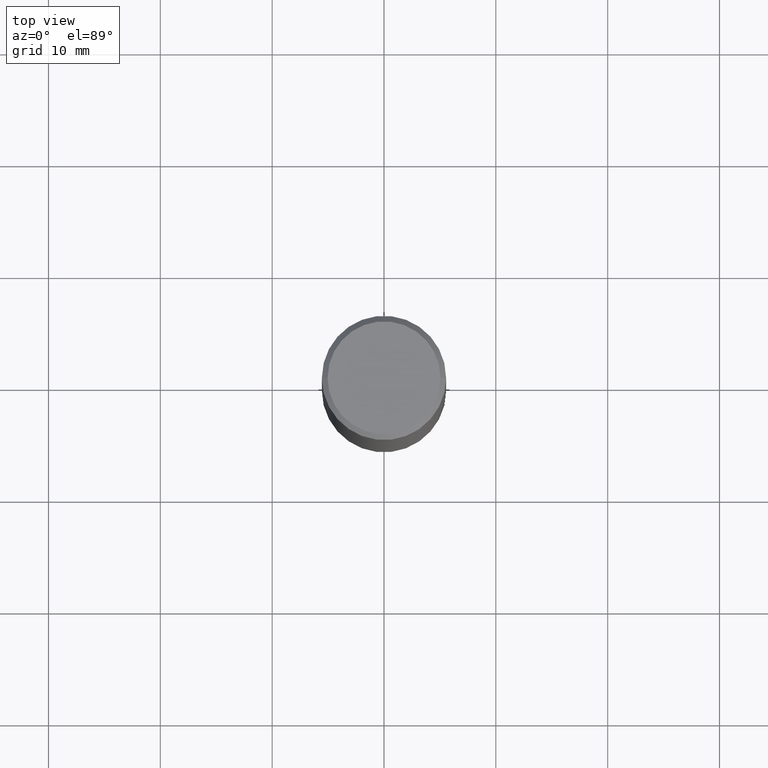
[diagram: clean part render]
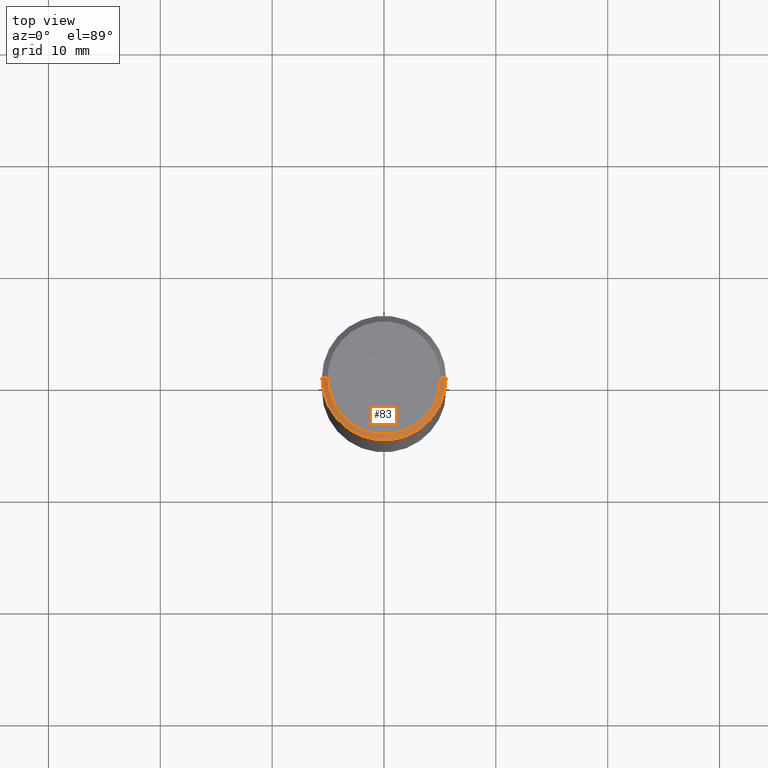
[diagram: same view with one face highlighted and labeled with its STEP entity id]
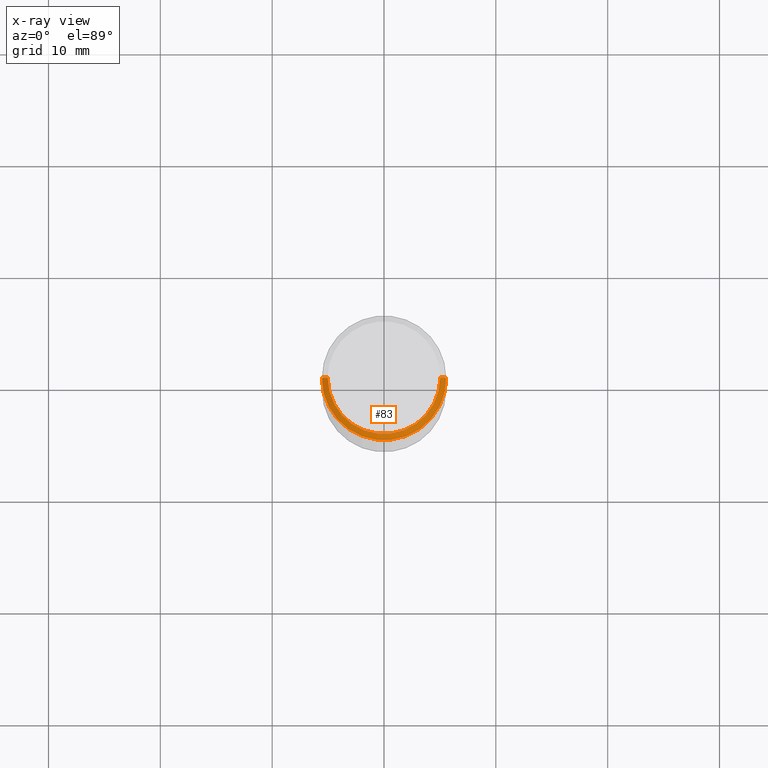
[diagram: x-ray of the same camera — body ghosted, the highlighted face saturated]
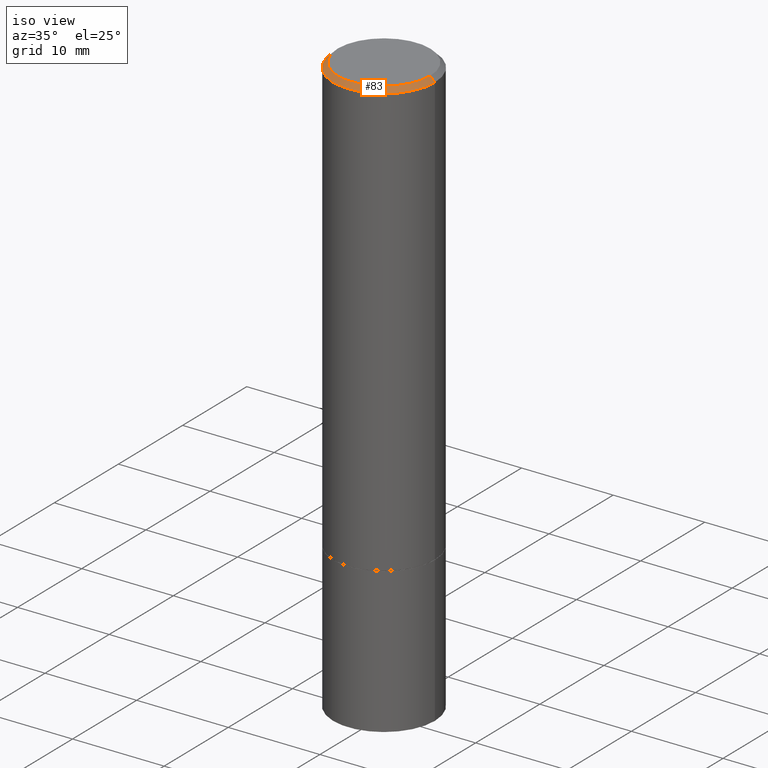
[diagram: same view with one face highlighted and labeled with its STEP entity id]
A machine part, top view. The second image highlights one B-rep face of the part: STEP entity #83.
The next image is the same camera in x-ray: the body ghosted, the highlighted face saturated — about 0% of this face is hidden behind the body in this view.
A second angle (iso view) of the same face is appended — the face is thin or edge-on in the first view.
In plain terms, the highlighted conical surface has half-angle 45 deg.
Its self-contained STEP definition (entity closure, byte-faithful):
#40 = VECTOR ( 'NONE', #357, 39.37007874015748143 ) ;
#44 = VERTEX_POINT ( 'NONE', #277 ) ;
#68 = ORIENTED_EDGE ( 'NONE', *, *, #257, .T. ) ;
#83 = ADVANCED_FACE ( 'NONE', ( #159 ), #103, .T. ) ;
#93 = VERTEX_POINT ( 'NONE', #131 ) ;
#94 = EDGE_CURVE ( 'NONE', #347, #136, #300, .T. ) ;
#102 = CARTESIAN_POINT ( 'NONE',  ( 0.2187499999999997224, -1.570563563789383461E-15, -0.02000000000000005246 ) ) ;
#103 = CONICAL_SURFACE ( 'NONE', #353, 0.2187499999999997224, 0.7853981633974459475 ) ;
#118 = AXIS2_PLACEMENT_3D ( 'NONE', #141, #308, #228 ) ;
#125 = EDGE_LOOP ( 'NONE', ( #295, #324, #68, #351 ) ) ;
#131 = CARTESIAN_POINT ( 'NONE',  ( -0.1987499999999997879, 1.422778645578574712E-15, -3.414809992081311401E-17 ) ) ;
#136 = VERTEX_POINT ( 'NONE', #191 ) ;
#141 = CARTESIAN_POINT ( 'NONE',  ( 8.350811314681758556E-46, -1.192274536304357760E-31, -3.414809992080329023E-17 ) ) ;
#152 = CIRCLE ( 'NONE', #118, 0.1987499999999997879 ) ;
#156 = EDGE_CURVE ( 'NONE', #93, #347, #152, .T. ) ;
#159 = FACE_OUTER_BOUND ( 'NONE', #125, .T. ) ;
#178 = CARTESIAN_POINT ( 'NONE',  ( 0.1987499999999997879, -1.467043770423237072E-15, -3.414809992079330621E-17 ) ) ;
#182 = EDGE_CURVE ( 'NONE', #44, #136, #316, .T. ) ;
#186 = DIRECTION ( 'NONE',  ( 2.445468806185136597E-29, -3.491481338843145583E-15, -1.000000000000000000 ) ) ;
#191 = CARTESIAN_POINT ( 'NONE',  ( 0.2187499999999997224, -1.570563563789383461E-15, -0.02000000000000005246 ) ) ;
#202 = DIRECTION ( 'NONE',  ( -0.7071067811865459074, 2.468850131082239706E-15, -0.7071067811865492381 ) ) ;
#225 = VECTOR ( 'NONE', #202, 39.37007874015748143 ) ;
#227 = CARTESIAN_POINT ( 'NONE',  ( 4.890937612370285420E-31, -6.982962677686308865E-17, -0.02000000000000005246 ) ) ;
#228 = DIRECTION ( 'NONE',  ( 1.000000000000000000, -6.982962677686266711E-15, 4.875627135991462684E-29 ) ) ;
#249 = DIRECTION ( 'NONE',  ( -1.000000000000000000, 6.982962677686266711E-15, 0.000000000000000000 ) ) ;
#254 = LINE ( 'NONE', #282, #225 ) ;
#257 = EDGE_CURVE ( 'NONE', #93, #44, #254, .T. ) ;
#277 = CARTESIAN_POINT ( 'NONE',  ( -0.2187499999999997224, 1.457693458967005770E-15, -0.02000000000000005246 ) ) ;
#282 = CARTESIAN_POINT ( 'NONE',  ( -0.2187499999999997224, 1.457693458967005770E-15, -0.02000000000000005246 ) ) ;
#287 = DIRECTION ( 'NONE',  ( 1.000000000000000000, -6.982962677686266711E-15, 0.000000000000000000 ) ) ;
#295 = ORIENTED_EDGE ( 'NONE', *, *, #94, .F. ) ;
#300 = LINE ( 'NONE', #102, #40 ) ;
#306 = DIRECTION ( 'NONE',  ( -2.445468806185136597E-29, 3.491481338843145583E-15, 1.000000000000000000 ) ) ;
#308 = DIRECTION ( 'NONE',  ( -2.445468806185136597E-29, 3.491481338843145583E-15, 1.000000000000000000 ) ) ;
#316 = CIRCLE ( 'NONE', #337, 0.2187499999999997224 ) ;
#324 = ORIENTED_EDGE ( 'NONE', *, *, #156, .F. ) ;
#337 = AXIS2_PLACEMENT_3D ( 'NONE', #227, #306, #287 ) ;
#347 = VERTEX_POINT ( 'NONE', #178 ) ;
#351 = ORIENTED_EDGE ( 'NONE', *, *, #182, .T. ) ;
#353 = AXIS2_PLACEMENT_3D ( 'NONE', #356, #186, #249 ) ;
#356 = CARTESIAN_POINT ( 'NONE',  ( 4.890937612370285420E-31, -6.982962677686308865E-17, -0.02000000000000005246 ) ) ;
#357 = DIRECTION ( 'NONE',  ( 0.7071067811865459074, -7.319954787623251312E-15, -0.7071067811865492381 ) ) ;